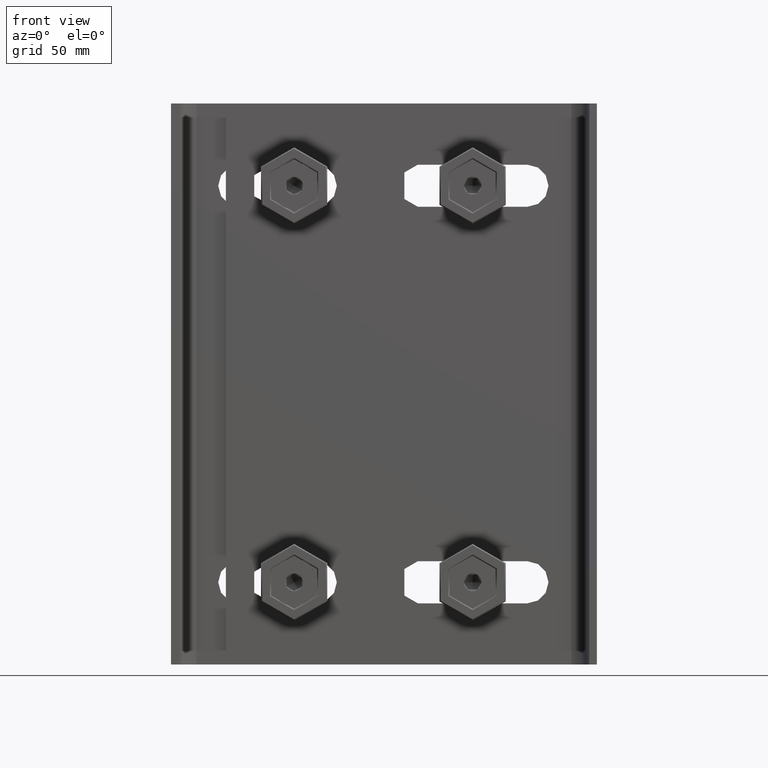
[diagram: clean part render]
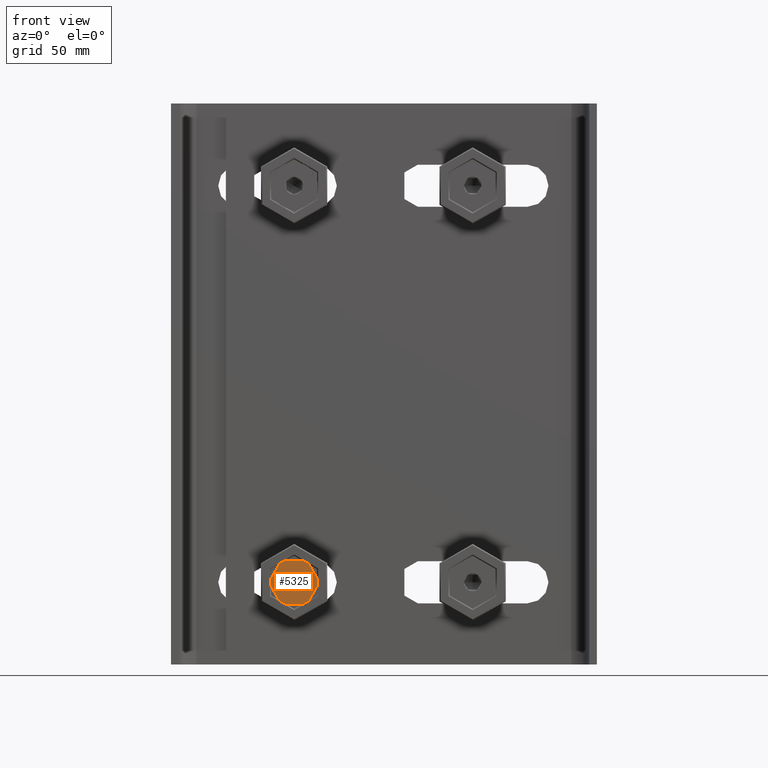
[diagram: same view with one face highlighted and labeled with its STEP entity id]
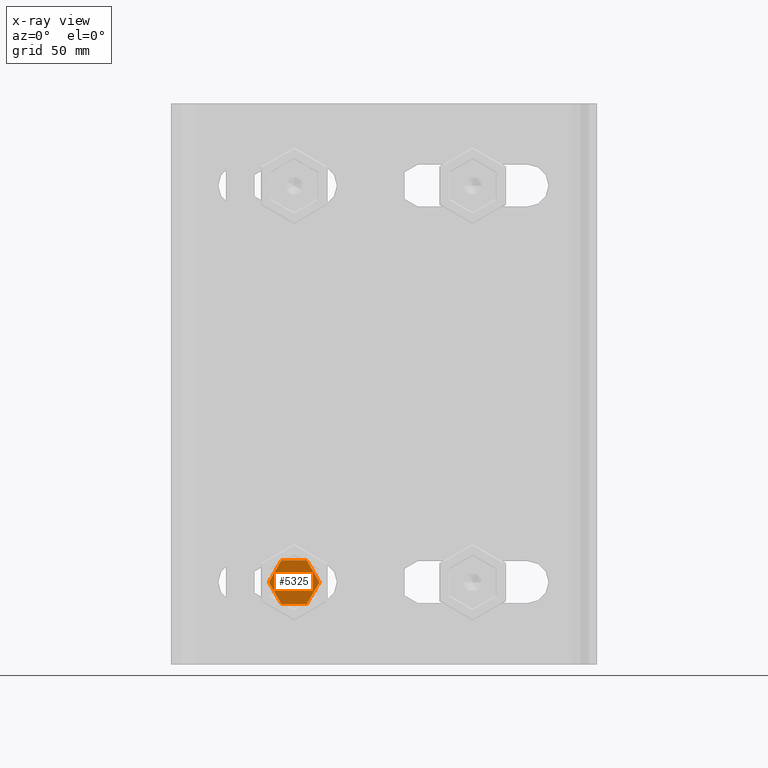
[diagram: x-ray of the same camera — body ghosted, the highlighted face saturated]
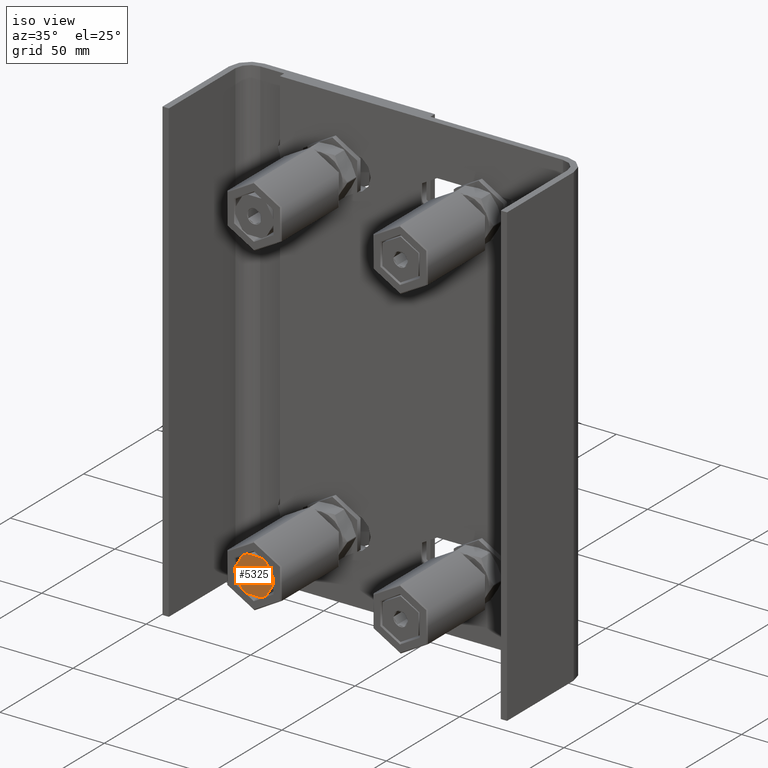
[diagram: same view with one face highlighted and labeled with its STEP entity id]
A machine part, front view. The second image highlights one B-rep face of the part: STEP entity #5325.
The next image is the same camera in x-ray: the body ghosted, the highlighted face saturated — about 0% of this face is hidden behind the body in this view.
A second angle (iso view) of the same face is appended — the face is thin or edge-on in the first view.
In plain terms, the highlighted planar face has unit normal (-0, -1, 0).
Its self-contained STEP definition (entity closure, byte-faithful):
#220 = CARTESIAN_POINT ( 'NONE',  ( 0.000000000000000000, 0.000000000000000000, 0.000000000000000000 ) ) ;
#462 = DIRECTION ( 'NONE',  ( -1.162081610680993718E-32, -1.000000000000000000, -4.930380657631323784E-32 ) ) ;
#850 = CARTESIAN_POINT ( 'NONE',  ( 3.464101615137719303, 0.000000000000000000, 5.551115123125782702E-14 ) ) ;
#1049 = DIRECTION ( 'NONE',  ( -5.551115123125687792E-17, -3.697785493223427590E-31, -1.000000000000000000 ) ) ;
#1080 = DIRECTION ( 'NONE',  ( -5.551115123125686560E-17, -3.697785493223426714E-31, -1.000000000000000000 ) ) ;
#1274 = DIRECTION ( 'NONE',  ( -1.162081610680993718E-32, -1.000000000000000000, -4.930380657631323784E-32 ) ) ;
#1639 = VERTEX_POINT ( 'NONE', #13985 ) ;
#1674 = EDGE_LOOP ( 'NONE', ( #15907, #12406, #19408, #11638, #14812, #2898, #6562 ) ) ;
#1935 = AXIS2_PLACEMENT_3D ( 'NONE', #6249, #4278, #15852 ) ;
#1936 = AXIS2_PLACEMENT_3D ( 'NONE', #10994, #17583, #1049 ) ;
#2441 = FACE_BOUND ( 'NONE', #1674, .T. ) ;
#2664 = VERTEX_POINT ( 'NONE', #13211 ) ;
#2830 = DIRECTION ( 'NONE',  ( -5.551115123125686560E-17, -3.697785493223426714E-31, -1.000000000000000000 ) ) ;
#2898 = ORIENTED_EDGE ( 'NONE', *, *, #12656, .F. ) ;
#4069 = EDGE_CURVE ( 'NONE', #14761, #10066, #4557, .T. ) ;
#4249 = DIRECTION ( 'NONE',  ( -1.162081610680993718E-32, -1.000000000000000000, -4.930380657631323784E-32 ) ) ;
#4278 = DIRECTION ( 'NONE',  ( -1.162081610680993718E-32, -1.000000000000000000, -4.930380657631323784E-32 ) ) ;
#4557 = CIRCLE ( 'NONE', #1936, 9.950000000000175149 ) ;
#5135 = CARTESIAN_POINT ( 'NONE',  ( 1.732050807568833672, 8.673617379884035472E-16, -2.999999999999836131 ) ) ;
#5196 = DIRECTION ( 'NONE',  ( -5.551115123125686560E-17, -3.697785493223427152E-31, -1.000000000000000000 ) ) ;
#5325 = ADVANCED_FACE ( 'NONE', ( #2441, #15134 ), #11817, .T. ) ;
#5371 = CARTESIAN_POINT ( 'NONE',  ( 0.000000000000000000, 0.000000000000000000, 0.000000000000000000 ) ) ;
#5448 = AXIS2_PLACEMENT_3D ( 'NONE', #16274, #7734, #2830 ) ;
#5612 = CARTESIAN_POINT ( 'NONE',  ( -1.732050807568882078, 5.204170427930421283E-15, 3.000000000000030198 ) ) ;
#5632 = AXIS2_PLACEMENT_3D ( 'NONE', #8079, #21205, #9521 ) ;
#5721 = EDGE_CURVE ( 'NONE', #18433, #14243, #17689, .T. ) ;
#6049 = CIRCLE ( 'NONE', #12697, 3.464101615137817447 ) ;
#6142 = EDGE_CURVE ( 'NONE', #19870, #2664, #11203, .T. ) ;
#6249 = CARTESIAN_POINT ( 'NONE',  ( 0.000000000000000000, 0.000000000000000000, 0.000000000000000000 ) ) ;
#6477 = DIRECTION ( 'NONE',  ( -5.551115123125686560E-17, -3.697785493223426714E-31, -1.000000000000000000 ) ) ;
#6562 = ORIENTED_EDGE ( 'NONE', *, *, #5721, .F. ) ;
#6918 = DIRECTION ( 'NONE',  ( -1.162081610680991529E-32, -1.000000000000000000, 3.697785493223427152E-31 ) ) ;
#7501 = DIRECTION ( 'NONE',  ( -5.551115123125686560E-17, -3.697785493223426714E-31, -1.000000000000000000 ) ) ;
#7722 = AXIS2_PLACEMENT_3D ( 'NONE', #15108, #6918, #5196 ) ;
#7734 = DIRECTION ( 'NONE',  ( -1.162081610680993718E-32, -1.000000000000000000, -4.930380657631323784E-32 ) ) ;
#8079 = CARTESIAN_POINT ( 'NONE',  ( 0.000000000000000000, 0.000000000000000000, 0.000000000000000000 ) ) ;
#8334 = CARTESIAN_POINT ( 'NONE',  ( -5.523359547510156352E-16, -3.679296565757375374E-30, -9.950000000000175149 ) ) ;
#8738 = EDGE_CURVE ( 'NONE', #10066, #14761, #12069, .T. ) ;
#8908 = CIRCLE ( 'NONE', #15311, 3.464101615137817447 ) ;
#9356 = ORIENTED_EDGE ( 'NONE', *, *, #4069, .T. ) ;
#9521 = DIRECTION ( 'NONE',  ( -5.551115123125686560E-17, -3.697785493223426714E-31, -1.000000000000000000 ) ) ;
#10066 = VERTEX_POINT ( 'NONE', #8334 ) ;
#10209 = AXIS2_PLACEMENT_3D ( 'NONE', #220, #16755, #15182 ) ;
#10994 = CARTESIAN_POINT ( 'NONE',  ( 0.000000000000000000, 0.000000000000000000, 0.000000000000000000 ) ) ;
#11203 = CIRCLE ( 'NONE', #19092, 3.464101615137817447 ) ;
#11638 = ORIENTED_EDGE ( 'NONE', *, *, #13735, .F. ) ;
#11817 = PLANE ( 'NONE',  #7722 ) ;
#12003 = DIRECTION ( 'NONE',  ( -5.551115123125686560E-17, -3.697785493223426714E-31, -1.000000000000000000 ) ) ;
#12069 = CIRCLE ( 'NONE', #1935, 9.950000000000175149 ) ;
#12406 = ORIENTED_EDGE ( 'NONE', *, *, #20059, .F. ) ;
#12540 = CARTESIAN_POINT ( 'NONE',  ( 0.000000000000000000, 0.000000000000000000, 0.000000000000000000 ) ) ;
#12656 = EDGE_CURVE ( 'NONE', #14243, #19870, #17709, .T. ) ;
#12697 = AXIS2_PLACEMENT_3D ( 'NONE', #21104, #1274, #6477 ) ;
#12961 = AXIS2_PLACEMENT_3D ( 'NONE', #12540, #16103, #1080 ) ;
#13120 = EDGE_LOOP ( 'NONE', ( #16185, #9356 ) ) ;
#13211 = CARTESIAN_POINT ( 'NONE',  ( -3.464101615137798795, 0.000000000000000000, 5.551115123125782702E-14 ) ) ;
#13605 = CIRCLE ( 'NONE', #12961, 3.464101615137817447 ) ;
#13735 = EDGE_CURVE ( 'NONE', #2664, #1639, #8908, .T. ) ;
#13985 = CARTESIAN_POINT ( 'NONE',  ( -1.732050807568885631, 0.000000000000000000, -2.999999999999975131 ) ) ;
#14243 = VERTEX_POINT ( 'NONE', #19856 ) ;
#14368 = CIRCLE ( 'NONE', #5632, 3.464101615137817447 ) ;
#14761 = VERTEX_POINT ( 'NONE', #21451 ) ;
#14812 = ORIENTED_EDGE ( 'NONE', *, *, #6142, .F. ) ;
#15108 = CARTESIAN_POINT ( 'NONE',  ( 9.949999999999938893, 0.000000000000000000, 2.359223927328457648E-13 ) ) ;
#15134 = FACE_OUTER_BOUND ( 'NONE', #13120, .T. ) ;
#15182 = DIRECTION ( 'NONE',  ( -5.551115123125686560E-17, -3.697785493223426714E-31, -1.000000000000000000 ) ) ;
#15311 = AXIS2_PLACEMENT_3D ( 'NONE', #5371, #462, #12003 ) ;
#15753 = CARTESIAN_POINT ( 'NONE',  ( 0.000000000000000000, 0.000000000000000000, 0.000000000000000000 ) ) ;
#15852 = DIRECTION ( 'NONE',  ( -5.551115123125687792E-17, -3.697785493223427590E-31, -1.000000000000000000 ) ) ;
#15907 = ORIENTED_EDGE ( 'NONE', *, *, #16227, .F. ) ;
#16103 = DIRECTION ( 'NONE',  ( -1.162081610680993718E-32, -1.000000000000000000, -4.930380657631323784E-32 ) ) ;
#16185 = ORIENTED_EDGE ( 'NONE', *, *, #8738, .T. ) ;
#16227 = EDGE_CURVE ( 'NONE', #19506, #18433, #13605, .T. ) ;
#16274 = CARTESIAN_POINT ( 'NONE',  ( 0.000000000000000000, 0.000000000000000000, 0.000000000000000000 ) ) ;
#16755 = DIRECTION ( 'NONE',  ( -1.162081610680993718E-32, -1.000000000000000000, -4.930380657631323784E-32 ) ) ;
#17143 = CARTESIAN_POINT ( 'NONE',  ( -1.922962686383565542E-16, 1.707933959934491889E-31, -3.464101615137817447 ) ) ;
#17583 = DIRECTION ( 'NONE',  ( -1.162081610680993718E-32, -1.000000000000000000, -4.930380657631323784E-32 ) ) ;
#17689 = CIRCLE ( 'NONE', #10209, 3.464101615137817447 ) ;
#17709 = CIRCLE ( 'NONE', #5448, 3.464101615137817447 ) ;
#18433 = VERTEX_POINT ( 'NONE', #850 ) ;
#19092 = AXIS2_PLACEMENT_3D ( 'NONE', #15753, #4249, #7501 ) ;
#19408 = ORIENTED_EDGE ( 'NONE', *, *, #20729, .F. ) ;
#19506 = VERTEX_POINT ( 'NONE', #5135 ) ;
#19856 = CARTESIAN_POINT ( 'NONE',  ( 1.732050807568837003, 0.000000000000000000, 3.000000000000224709 ) ) ;
#19870 = VERTEX_POINT ( 'NONE', #5612 ) ;
#20059 = EDGE_CURVE ( 'NONE', #20498, #19506, #14368, .T. ) ;
#20498 = VERTEX_POINT ( 'NONE', #17143 ) ;
#20729 = EDGE_CURVE ( 'NONE', #1639, #20498, #6049, .T. ) ;
#21104 = CARTESIAN_POINT ( 'NONE',  ( 0.000000000000000000, 0.000000000000000000, 0.000000000000000000 ) ) ;
#21205 = DIRECTION ( 'NONE',  ( -1.162081610680993718E-32, -1.000000000000000000, -4.930380657631323784E-32 ) ) ;
#21451 = CARTESIAN_POINT ( 'NONE',  ( 1.770859519902621662E-15, -4.905728754343166815E-31, 9.949999999999999289 ) ) ;